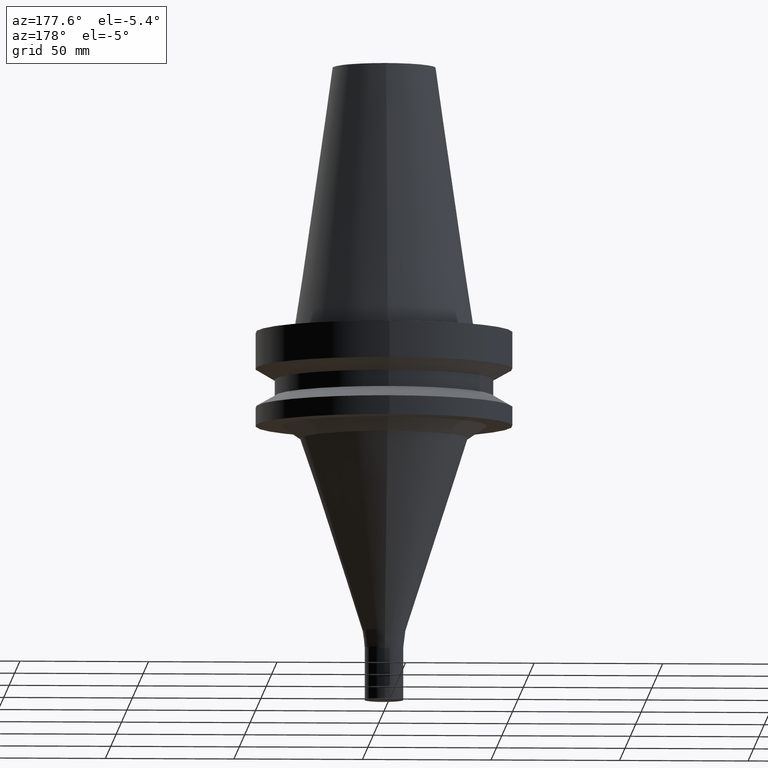
[diagram: clean part render]
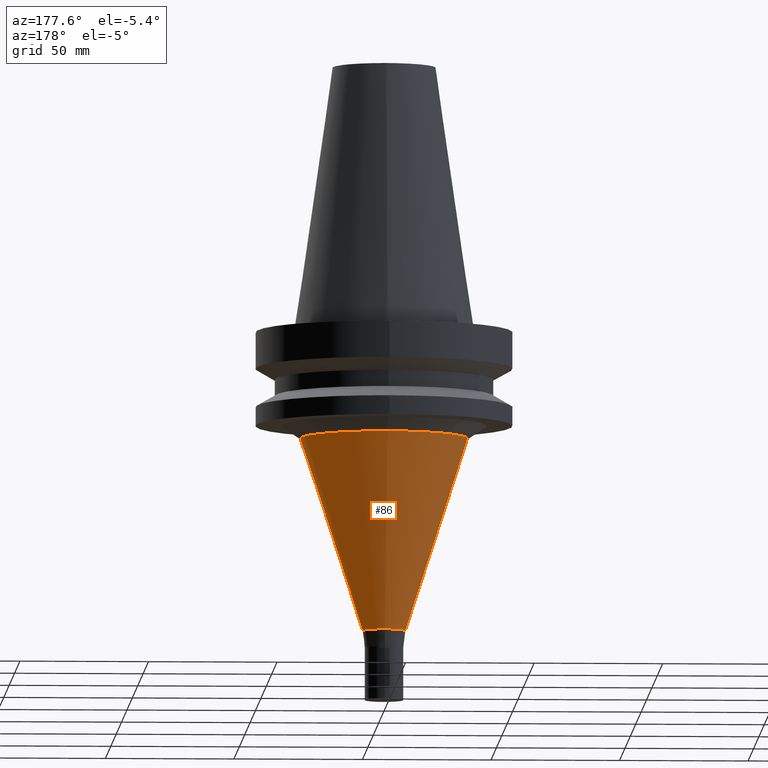
[diagram: same view with one face highlighted and labeled with its STEP entity id]
A machine part, auxiliary view. The second image highlights one B-rep face of the part: STEP entity #86.
In plain terms, the highlighted conical surface has half-angle 17.956 deg.
Its self-contained STEP definition (entity closure, byte-faithful):
#86=ADVANCED_FACE('',(#123,#124),#125,.T.);
#123=FACE_BOUND('',#166,.T.);
#124=FACE_BOUND('',#167,.T.);
#125=CONICAL_SURFACE('',#168,20.4717357253192,0.313391559157163);
#166=EDGE_LOOP('',(#231));
#167=EDGE_LOOP('',(#232));
#168=AXIS2_PLACEMENT_3D('',#233,#234,#235);
#231=ORIENTED_EDGE('',*,*,#261,.F.);
#232=ORIENTED_EDGE('',*,*,#260,.T.);
#233=CARTESIAN_POINT('',(4.92526307498136E-015,9.85052614996271E-015,-80.4356501549756));
#234=DIRECTION('',(-6.12323399573677E-017,-1.22464679914735E-016,1.0));
#235=DIRECTION('',(-1.23259516440783E-032,1.0,1.22464679914735E-016));
#260=EDGE_CURVE('',#284,#284,#285,.T.);
#261=EDGE_CURVE('',#286,#286,#287,.T.);
#284=VERTEX_POINT('',#312);
#285=CIRCLE('',#313,32.6225167724341);
#286=VERTEX_POINT('',#314);
#287=CIRCLE('',#315,8.32095467820437);
#312=CARTESIAN_POINT('',(2.62940690329647E-015,32.6225167724341,-42.9414734946788));
#313=AXIS2_PLACEMENT_3D('',#350,#351,#352);
#314=CARTESIAN_POINT('',(7.22111924666625E-015,8.32095467820439,-117.929826815272));
#315=AXIS2_PLACEMENT_3D('',#353,#354,#355);
#350=CARTESIAN_POINT('',(2.62940690329647E-015,5.25881380659293E-015,-42.9414734946788));
#351=DIRECTION('',(6.12323399573677E-017,1.22464679914735E-016,-1.0));
#352=DIRECTION('',(-1.23259516440783E-032,1.0,1.22464679914735E-016));
#353=CARTESIAN_POINT('',(7.22111924666625E-015,1.44422384933325E-014,-117.929826815272));
#354=DIRECTION('',(6.12323399573677E-017,1.22464679914735E-016,-1.0));
#355=DIRECTION('',(-1.23259516440783E-032,1.0,1.22464679914735E-016));